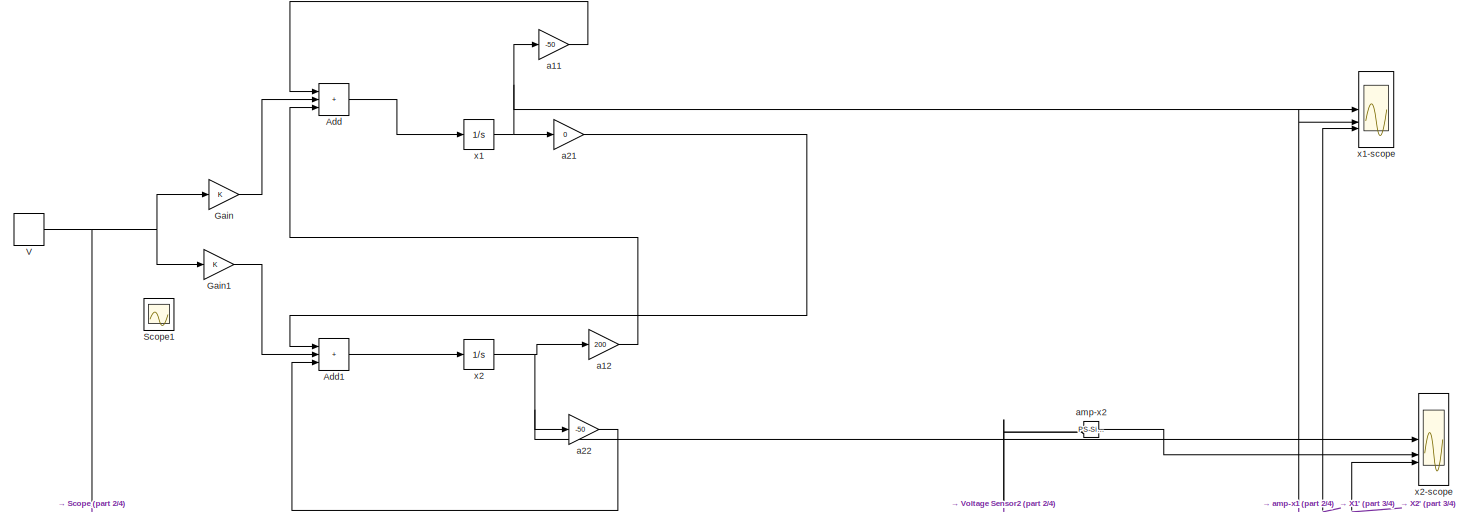
[diagram: root canvas - part 1/4, full width, top band]
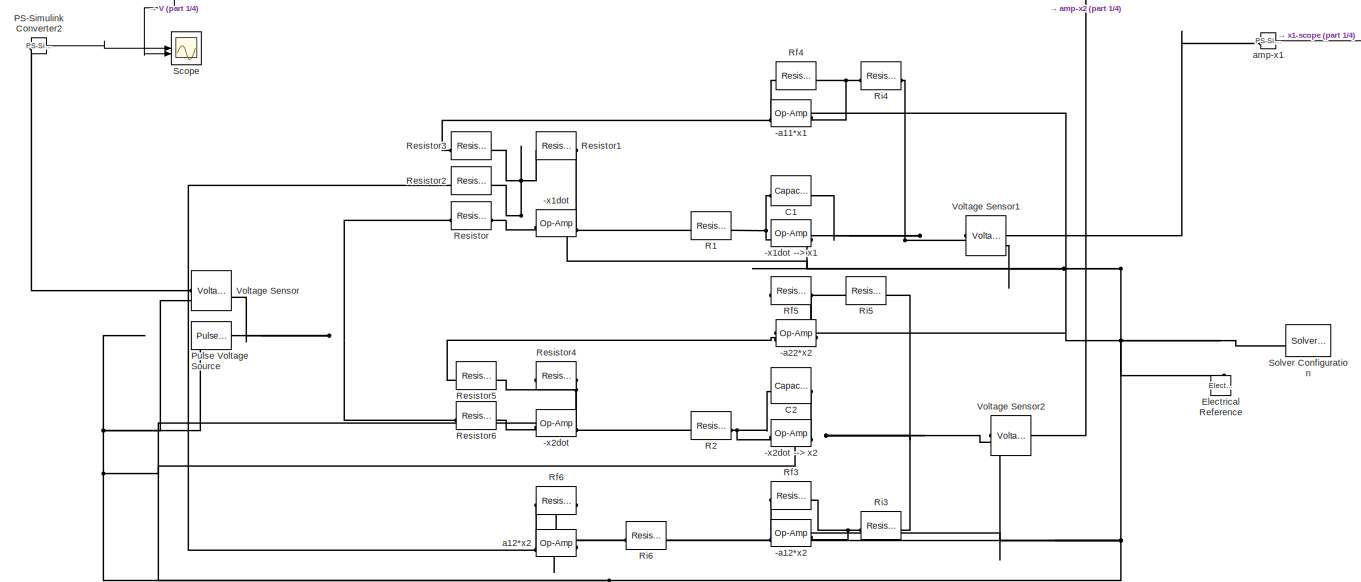
[diagram: root canvas - part 2/4, full width, top band]
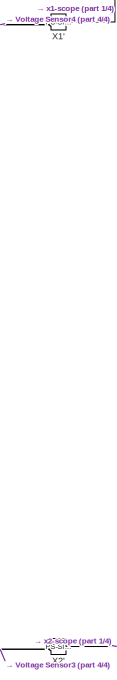
[diagram: root canvas - part 3/4, middle right region]
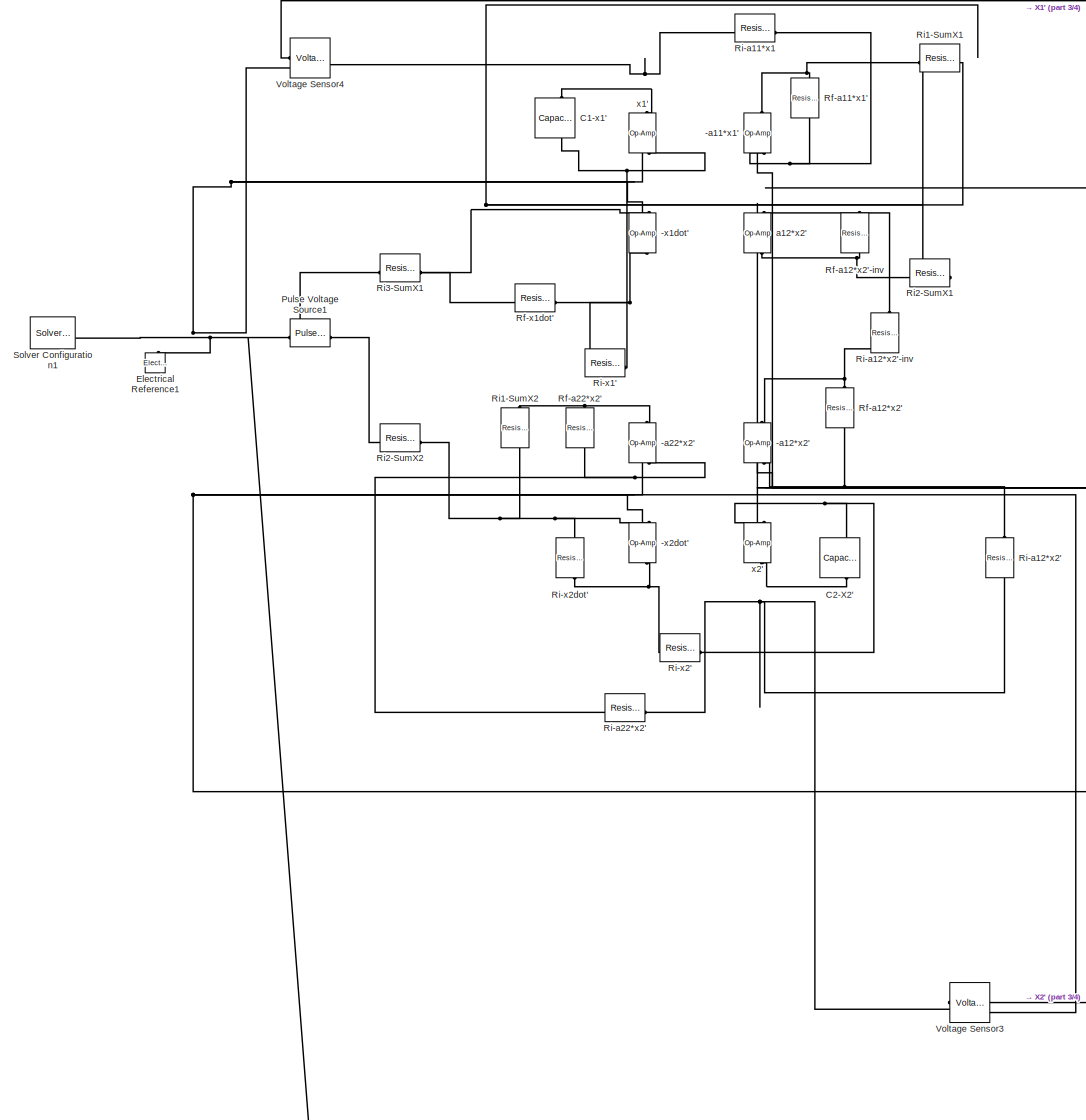
[diagram: root canvas - part 4/4, central region]
MODEL slx_df04e0e66775
KIND model
CONFIG AbsTol = 1e-3
CONFIG EnableMultiTasking = off
CONFIG FixedStep = auto
CONFIG MaxStep = auto
CONFIG MinStep = auto
CONFIG RelTol = 1e-3
CONFIG SampleTimeConstraint = Unconstrained
CONFIG SolverName = VariableStepAuto
CONFIG StartTime = 0.0
CONFIG StopTime = 0.4
BLOCK [Reference] -a11*x1  REF=fl_lib/Electrical/Electrical Elements/Op-Amp
  SourceBlock = fl_lib/Electrical/Electrical Elements/Op-Amp
  SourceType = Op-Amp
BLOCK [Reference] -a11*x1'  REF=fl_lib/Electrical/Electrical Elements/Op-Amp
  NameLocation = right
  SourceBlock = fl_lib/Electrical/Electrical Elements/Op-Amp
  SourceType = Op-Amp
BLOCK [Reference] -a12*x2  REF=fl_lib/Electrical/Electrical Elements/Op-Amp
  SourceBlock = fl_lib/Electrical/Electrical Elements/Op-Amp
  SourceType = Op-Amp
BLOCK [Reference] -a12*x2'  REF=fl_lib/Electrical/Electrical Elements/Op-Amp
  NameLocation = right
  SourceBlock = fl_lib/Electrical/Electrical Elements/Op-Amp
  SourceType = Op-Amp
BLOCK [Reference] -a22*x2  REF=fl_lib/Electrical/Electrical Elements/Op-Amp
  SourceBlock = fl_lib/Electrical/Electrical Elements/Op-Amp
  SourceType = Op-Amp
BLOCK [Reference] -a22*x2'  REF=fl_lib/Electrical/Electrical Elements/Op-Amp
  NameLocation = right
  SourceBlock = fl_lib/Electrical/Electrical Elements/Op-Amp
  SourceType = Op-Amp
BLOCK [Reference] -x1dot  REF=fl_lib/Electrical/Electrical Elements/Op-Amp
  SourceBlock = fl_lib/Electrical/Electrical Elements/Op-Amp
  SourceType = Op-Amp
BLOCK [Reference] -x1dot --> x1  REF=fl_lib/Electrical/Electrical Elements/Op-Amp
  SourceBlock = fl_lib/Electrical/Electrical Elements/Op-Amp
  SourceType = Op-Amp
BLOCK [Reference] -x1dot'  REF=fl_lib/Electrical/Electrical Elements/Op-Amp
  NameLocation = left
  SourceBlock = fl_lib/Electrical/Electrical Elements/Op-Amp
  SourceType = Op-Amp
BLOCK [Reference] -x2dot  REF=fl_lib/Electrical/Electrical Elements/Op-Amp
  SourceBlock = fl_lib/Electrical/Electrical Elements/Op-Amp
  SourceType = Op-Amp
BLOCK [Reference] -x2dot --> x2  REF=fl_lib/Electrical/Electrical Elements/Op-Amp
  SourceBlock = fl_lib/Electrical/Electrical Elements/Op-Amp
  SourceType = Op-Amp
BLOCK [Reference] -x2dot'  REF=fl_lib/Electrical/Electrical Elements/Op-Amp
  NameLocation = left
  SourceBlock = fl_lib/Electrical/Electrical Elements/Op-Amp
  SourceType = Op-Amp
BLOCK [Sum] Add
  IconShape = rectangular
  Inputs = +++
BLOCK [Sum] Add1
  IconShape = rectangular
  Inputs = +++
BLOCK [Reference] C1  REF=fl_lib/Electrical/Electrical Elements/Capacitor
  SourceBlock = fl_lib/Electrical/Electrical Elements/Capacitor
  SourceType = Capacitor
BLOCK [Reference] C1-x1'  REF=fl_lib/Electrical/Electrical Elements/Capacitor
  NameLocation = right
  SourceBlock = fl_lib/Electrical/Electrical Elements/Capacitor
  SourceType = Capacitor
BLOCK [Reference] C2  REF=fl_lib/Electrical/Electrical Elements/Capacitor
  SourceBlock = fl_lib/Electrical/Electrical Elements/Capacitor
  SourceType = Capacitor
BLOCK [Reference] C2-X2'  REF=fl_lib/Electrical/Electrical Elements/Capacitor
  NameLocation = left
  SourceBlock = fl_lib/Electrical/Electrical Elements/Capacitor
  SourceType = Capacitor
BLOCK [Reference] Electrical Reference  REF=fl_lib/Electrical/Electrical Elements/Electrical Reference
  LibrarySourceBlock = ee_lib/Connectors &\nReferences/Electrical Reference
  NameLocation = right
  SourceBlock = fl_lib/Electrical/Electrical Elements/Electrical Reference
  SourceType = Electrical Reference
BLOCK [Reference] Electrical Reference1  REF=fl_lib/Electrical/Electrical Elements/Electrical Reference
  LibrarySourceBlock = ee_lib/Connectors &\nReferences/Electrical Reference
  NameLocation = right
  SourceBlock = fl_lib/Electrical/Electrical Elements/Electrical Reference
  SourceType = Electrical Reference
BLOCK [Gain] Gain
BLOCK [Gain] Gain1
BLOCK [Reference] PS-Simulink Converter2  REF=nesl_utility/PS-Simulink
Converter
  SourceBlock = nesl_utility/PS-Simulink\nConverter
  SourceType = PS-Simulink\nConverter
BLOCK [Reference] Pulse Voltage Source  REF=ee_lib/Additional
Components/SPICE Sources/Pulse Voltage Source
  LibrarySourceBlock = ee_lib/Sources/Pulse Voltage Source
  SourceBlock = ee_lib/Additional\nComponents/SPICE Sources/Pulse Voltage Source
  SourceType = Pulse Voltage Source
BLOCK [Reference] Pulse Voltage Source1  REF=ee_lib/Additional
Components/SPICE Sources/Pulse Voltage Source
  LibrarySourceBlock = ee_lib/Sources/Pulse Voltage Source
  SourceBlock = ee_lib/Additional\nComponents/SPICE Sources/Pulse Voltage Source
  SourceType = Pulse Voltage Source
BLOCK [Reference] R1  REF=fl_lib/Electrical/Electrical Elements/Resistor
  SourceBlock = fl_lib/Electrical/Electrical Elements/Resistor
  SourceType = Resistor
BLOCK [Reference] R2  REF=fl_lib/Electrical/Electrical Elements/Resistor
  SourceBlock = fl_lib/Electrical/Electrical Elements/Resistor
  SourceType = Resistor
BLOCK [Reference] Resistor  REF=fl_lib/Electrical/Electrical Elements/Resistor
  SourceBlock = fl_lib/Electrical/Electrical Elements/Resistor
  SourceType = Resistor
BLOCK [Reference] Resistor1  REF=fl_lib/Electrical/Electrical Elements/Resistor
  SourceBlock = fl_lib/Electrical/Electrical Elements/Resistor
  SourceType = Resistor
BLOCK [Reference] Resistor2  REF=fl_lib/Electrical/Electrical Elements/Resistor
  SourceBlock = fl_lib/Electrical/Electrical Elements/Resistor
  SourceType = Resistor
BLOCK [Reference] Resistor3  REF=fl_lib/Electrical/Electrical Elements/Resistor
  SourceBlock = fl_lib/Electrical/Electrical Elements/Resistor
  SourceType = Resistor
BLOCK [Reference] Resistor4  REF=fl_lib/Electrical/Electrical Elements/Resistor
  SourceBlock = fl_lib/Electrical/Electrical Elements/Resistor
  SourceType = Resistor
BLOCK [Reference] Resistor5  REF=fl_lib/Electrical/Electrical Elements/Resistor
  SourceBlock = fl_lib/Electrical/Electrical Elements/Resistor
  SourceType = Resistor
BLOCK [Reference] Resistor6  REF=fl_lib/Electrical/Electrical Elements/Resistor
  SourceBlock = fl_lib/Electrical/Electrical Elements/Resistor
  SourceType = Resistor
BLOCK [Reference] Rf-a11*x1'  REF=fl_lib/Electrical/Electrical Elements/Resistor
  NameLocation = right
  SourceBlock = fl_lib/Electrical/Electrical Elements/Resistor
  SourceType = Resistor
BLOCK [Reference] Rf-a12*x2'  REF=fl_lib/Electrical/Electrical Elements/Resistor
  NameLocation = right
  SourceBlock = fl_lib/Electrical/Electrical Elements/Resistor
  SourceType = Resistor
BLOCK [Reference] Rf-a12*x2'-inv  REF=fl_lib/Electrical/Electrical Elements/Resistor
  NameLocation = left
  SourceBlock = fl_lib/Electrical/Electrical Elements/Resistor
  SourceType = Resistor
BLOCK [Reference] Rf-a22*x2'  REF=fl_lib/Electrical/Electrical Elements/Resistor
  NameLocation = right
  SourceBlock = fl_lib/Electrical/Electrical Elements/Resistor
  SourceType = Resistor
BLOCK [Reference] Rf-x1dot'  REF=fl_lib/Electrical/Electrical Elements/Resistor
  SourceBlock = fl_lib/Electrical/Electrical Elements/Resistor
  SourceType = Resistor
BLOCK [Reference] Rf3  REF=fl_lib/Electrical/Electrical Elements/Resistor
  SourceBlock = fl_lib/Electrical/Electrical Elements/Resistor
  SourceType = Resistor
BLOCK [Reference] Rf4  REF=fl_lib/Electrical/Electrical Elements/Resistor
  SourceBlock = fl_lib/Electrical/Electrical Elements/Resistor
  SourceType = Resistor
BLOCK [Reference] Rf5  REF=fl_lib/Electrical/Electrical Elements/Resistor
  SourceBlock = fl_lib/Electrical/Electrical Elements/Resistor
  SourceType = Resistor
BLOCK [Reference] Rf6  REF=fl_lib/Electrical/Electrical Elements/Resistor
  SourceBlock = fl_lib/Electrical/Electrical Elements/Resistor
  SourceType = Resistor
BLOCK [Reference] Ri-a11*x1  REF=fl_lib/Electrical/Electrical Elements/Resistor
  SourceBlock = fl_lib/Electrical/Electrical Elements/Resistor
  SourceType = Resistor
BLOCK [Reference] Ri-a12*x2'  REF=fl_lib/Electrical/Electrical Elements/Resistor
  NameLocation = right
  SourceBlock = fl_lib/Electrical/Electrical Elements/Resistor
  SourceType = Resistor
BLOCK [Reference] Ri-a12*x2'-inv  REF=fl_lib/Electrical/Electrical Elements/Resistor
  NameLocation = right
  SourceBlock = fl_lib/Electrical/Electrical Elements/Resistor
  SourceType = Resistor
BLOCK [Reference] Ri-a22*x2'  REF=fl_lib/Electrical/Electrical Elements/Resistor
  NameLocation = top
  SourceBlock = fl_lib/Electrical/Electrical Elements/Resistor
  SourceType = Resistor
BLOCK [Reference] Ri-x1'  REF=fl_lib/Electrical/Electrical Elements/Resistor
  NameLocation = top
  SourceBlock = fl_lib/Electrical/Electrical Elements/Resistor
  SourceType = Resistor
BLOCK [Reference] Ri-x2'  REF=fl_lib/Electrical/Electrical Elements/Resistor
  SourceBlock = fl_lib/Electrical/Electrical Elements/Resistor
  SourceType = Resistor
BLOCK [Reference] Ri-x2dot'  REF=fl_lib/Electrical/Electrical Elements/Resistor
  NameLocation = left
  SourceBlock = fl_lib/Electrical/Electrical Elements/Resistor
  SourceType = Resistor
BLOCK [Reference] Ri1-SumX1  REF=fl_lib/Electrical/Electrical Elements/Resistor
  SourceBlock = fl_lib/Electrical/Electrical Elements/Resistor
  SourceType = Resistor
BLOCK [Reference] Ri1-SumX2  REF=fl_lib/Electrical/Electrical Elements/Resistor
  NameLocation = left
  SourceBlock = fl_lib/Electrical/Electrical Elements/Resistor
  SourceType = Resistor
BLOCK [Reference] Ri2-SumX1  REF=fl_lib/Electrical/Electrical Elements/Resistor
  NameLocation = top
  SourceBlock = fl_lib/Electrical/Electrical Elements/Resistor
  SourceType = Resistor
BLOCK [Reference] Ri2-SumX2  REF=fl_lib/Electrical/Electrical Elements/Resistor
  SourceBlock = fl_lib/Electrical/Electrical Elements/Resistor
  SourceType = Resistor
BLOCK [Reference] Ri3  REF=fl_lib/Electrical/Electrical Elements/Resistor
  SourceBlock = fl_lib/Electrical/Electrical Elements/Resistor
  SourceType = Resistor
BLOCK [Reference] Ri3-SumX1  REF=fl_lib/Electrical/Electrical Elements/Resistor
  SourceBlock = fl_lib/Electrical/Electrical Elements/Resistor
  SourceType = Resistor
BLOCK [Reference] Ri4  REF=fl_lib/Electrical/Electrical Elements/Resistor
  SourceBlock = fl_lib/Electrical/Electrical Elements/Resistor
  SourceType = Resistor
BLOCK [Reference] Ri5  REF=fl_lib/Electrical/Electrical Elements/Resistor
  SourceBlock = fl_lib/Electrical/Electrical Elements/Resistor
  SourceType = Resistor
BLOCK [Reference] Ri6  REF=fl_lib/Electrical/Electrical Elements/Resistor
  SourceBlock = fl_lib/Electrical/Electrical Elements/Resistor
  SourceType = Resistor
BLOCK [Scope] Scope
  Floating = off
  NumInputPorts = 2
  ScopeSpecificationString = Simulink.scopes.TimeScopeBlockCfg('CurrentConfiguration', extmgr.ConfigurationSet(extmgr.Configuration('Core','General UI',true),extmgr.Configuration('Core','Source UI',true),extmgr.Configuration('Sources','WiredSimulink',true,'DataLoggingVariableName','ScopeData1'),extmgr.Configuration('Visuals','Time Domain',true,'SerializedDisplays',{struct('MinYLimReal','-0.125','MaxYLimReal','1.125','YLabelRe...<+1730ch>
BLOCK [Scope] Scope1
  Floating = off
  IOType = viewer
  NumInputPorts = 1
  ScopeSpecificationString = Simulink.scopes.TimeScopeBlockCfg('CurrentConfiguration', extmgr.ConfigurationSet(extmgr.Configuration('Core','General UI',true),extmgr.Configuration('Core','Source UI',true),extmgr.Configuration('Sources','WiredSimulink',true,'DataLoggingVariableName','ScopeData1'),extmgr.Configuration('Visuals','Time Domain',true,'SerializedDisplays',{struct('MinYLimReal','-1.25','MaxYLimReal','11.25','YLabelRea...<+1374ch>
BLOCK [Reference] Solver Configuration  REF=nesl_utility/Solver
Configuration
  SourceBlock = nesl_utility/Solver\nConfiguration
  SourceType = Solver\nConfiguration
BLOCK [Reference] Solver Configuration1  REF=nesl_utility/Solver
Configuration
  SourceBlock = nesl_utility/Solver\nConfiguration
  SourceType = Solver\nConfiguration
BLOCK [DiscretePulseGenerator] V
  Period = 0.25
  PulseType = Time based
  PulseWidth = 50
BLOCK [Reference] Voltage Sensor  REF=fl_lib/Electrical/Electrical Sensors/Voltage Sensor
  SourceBlock = fl_lib/Electrical/Electrical Sensors/Voltage Sensor
  SourceType = Voltage Sensor
BLOCK [Reference] Voltage Sensor1  REF=fl_lib/Electrical/Electrical Sensors/Voltage Sensor
  SourceBlock = fl_lib/Electrical/Electrical Sensors/Voltage Sensor
  SourceType = Voltage Sensor
BLOCK [Reference] Voltage Sensor2  REF=fl_lib/Electrical/Electrical Sensors/Voltage Sensor
  NameLocation = top
  SourceBlock = fl_lib/Electrical/Electrical Sensors/Voltage Sensor
  SourceType = Voltage Sensor
BLOCK [Reference] Voltage Sensor3  REF=fl_lib/Electrical/Electrical Sensors/Voltage Sensor
  NameLocation = top
  SourceBlock = fl_lib/Electrical/Electrical Sensors/Voltage Sensor
  SourceType = Voltage Sensor
BLOCK [Reference] Voltage Sensor4  REF=fl_lib/Electrical/Electrical Sensors/Voltage Sensor
  SourceBlock = fl_lib/Electrical/Electrical Sensors/Voltage Sensor
  SourceType = Voltage Sensor
BLOCK [Reference] X1'  REF=nesl_utility/PS-Simulink
Converter
  SourceBlock = nesl_utility/PS-Simulink\nConverter
  SourceType = PS-Simulink\nConverter
BLOCK [Reference] X2'  REF=nesl_utility/PS-Simulink
Converter
  SourceBlock = nesl_utility/PS-Simulink\nConverter
  SourceType = PS-Simulink\nConverter
BLOCK [Gain] a11
  Gain = -50
BLOCK [Gain] a12
  Gain = 200
BLOCK [Reference] a12*x2  REF=fl_lib/Electrical/Electrical Elements/Op-Amp
  SourceBlock = fl_lib/Electrical/Electrical Elements/Op-Amp
  SourceType = Op-Amp
BLOCK [Reference] a12*x2'  REF=fl_lib/Electrical/Electrical Elements/Op-Amp
  NameLocation = left
  SourceBlock = fl_lib/Electrical/Electrical Elements/Op-Amp
  SourceType = Op-Amp
BLOCK [Gain] a21
  Gain = 0
BLOCK [Gain] a22
  Gain = -50
BLOCK [Reference] amp-x1  REF=nesl_utility/PS-Simulink
Converter
  SourceBlock = nesl_utility/PS-Simulink\nConverter
  SourceType = PS-Simulink\nConverter
BLOCK [Reference] amp-x2  REF=nesl_utility/PS-Simulink
Converter
  SourceBlock = nesl_utility/PS-Simulink\nConverter
  SourceType = PS-Simulink\nConverter
BLOCK [Integrator] x1
BLOCK [Reference] x1'  REF=fl_lib/Electrical/Electrical Elements/Op-Amp
  NameLocation = right
  SourceBlock = fl_lib/Electrical/Electrical Elements/Op-Amp
  SourceType = Op-Amp
BLOCK [Scope] x1-scope
  Floating = off
  NumInputPorts = 3
  ScopeSpecificationString = Simulink.scopes.TimeScopeBlockCfg('CurrentConfiguration', extmgr.ConfigurationSet(extmgr.Configuration('Core','General UI',true),extmgr.Configuration('Core','Source UI',true),extmgr.Configuration('Sources','WiredSimulink',true),extmgr.Configuration('Visuals','Time Domain',true,'SerializedDisplays',{struct('MinYLimReal','-0.01236','MaxYLimReal','0.11128','YLabelReal','','MinYLimMag','0.00000','MaxY...<+2742ch>
BLOCK [Integrator] x2
BLOCK [Reference] x2'  REF=fl_lib/Electrical/Electrical Elements/Op-Amp
  NameLocation = left
  SourceBlock = fl_lib/Electrical/Electrical Elements/Op-Amp
  SourceType = Op-Amp
BLOCK [Scope] x2-scope
  Floating = off
  NumInputPorts = 3
  ScopeSpecificationString = Simulink.scopes.TimeScopeBlockCfg('CurrentConfiguration', extmgr.ConfigurationSet(extmgr.Configuration('Core','General UI',true),extmgr.Configuration('Core','Source UI',true),extmgr.Configuration('Sources','WiredSimulink',true,'DataLoggingVariableName','ScopeData2'),extmgr.Configuration('Visuals','Time Domain',true,'SerializedDisplays',{struct('MinYLimReal','-0.0025','MaxYLimReal','0.02246','YLabe...<+2922ch>
LINE Add1:1 -> x2:1
LINE Add:1 -> x1:1
LINE Gain1:1 -> Add1:2
LINE Gain:1 -> Add:2
LINE PS-Simulink Converter2:1 -> Scope:1
NET V:1 -> Gain1:1, Gain:1, Scope:2
LINE X1':1 -> x1-scope:3
LINE X2':1 -> x2-scope:3
LINE a11:1 -> Add:1
LINE a12:1 -> Add:3
LINE a21:1 -> Add1:1
LINE a22:1 -> Add1:3
LINE amp-x1:1 -> x1-scope:2
LINE amp-x2:1 -> x2-scope:2
NET x1:1 -> a11:1, a21:1, x1-scope:1
NET x2:1 -> a12:1, a22:1, x2-scope:1
PNET net1: -a11*x1':LConn1 -- -a12*x2':LConn1 -- -a22*x2':LConn1 -- -x1dot':LConn1 -- -x2dot':LConn1 -- Electrical Reference1:LConn1 -- Pulse Voltage Source1:RConn1 -- Solver Configuration1:RConn1 -- Voltage Sensor3:RConn2 -- Voltage Sensor4:RConn2 -- a12*x2':LConn1 -- x1':LConn1 -- x2':LConn1
PNET net2: -a11*x1':LConn2 -- Rf-a11*x1':LConn1 -- Ri-a11*x1:RConn1
PNET net3: -a11*x1':RConn1 -- Rf-a11*x1':RConn1 -- Ri1-SumX1:LConn1
PNET net4: -a11*x1:LConn1 -- -a12*x2:LConn1 -- -a22*x2:LConn1 -- -x1dot --> x1:LConn1 -- -x1dot:LConn1 -- -x2dot --> x2:LConn1 -- -x2dot:LConn1 -- Electrical Reference:LConn1 -- Pulse Voltage Source:RConn1 -- Solver Configuration:RConn1 -- Voltage Sensor1:RConn2 -- Voltage Sensor2:RConn2 -- Voltage Sensor:RConn2 -- a12*x2:LConn1
PNET net5: -a11*x1:LConn2 -- Rf4:LConn1 -- Ri4:RConn1
PNET net6: -a11*x1:RConn1 -- Resistor3:LConn1 -- Rf4:RConn1
PNET net7: -a12*x2':LConn2 -- Rf-a12*x2':LConn1 -- Ri-a12*x2':RConn1
PNET net8: -a12*x2':RConn1 -- Rf-a12*x2':RConn1 -- Ri-a12*x2'-inv:LConn1
PNET net9: -a12*x2:LConn2 -- Rf3:LConn1 -- Ri3:RConn1
PNET net10: -a12*x2:RConn1 -- Rf3:RConn1 -- Ri6:LConn1
PNET net11: -a22*x2':LConn2 -- Rf-a22*x2':LConn1 -- Ri-a22*x2':RConn1
PNET net12: -a22*x2':RConn1 -- Rf-a22*x2':RConn1 -- Ri1-SumX2:LConn1
PNET net13: -a22*x2:LConn2 -- Rf5:RConn1 -- Ri5:LConn1
PNET net14: -a22*x2:RConn1 -- Resistor5:LConn1 -- Rf5:LConn1
PNET net15: -x1dot --> x1:LConn2 -- C1:LConn1 -- R1:RConn1
PNET net16: -x1dot --> x1:RConn1 -- C1:RConn1 -- Ri4:LConn1 -- Voltage Sensor1:LConn1
PNET net17: -x1dot':LConn2 -- Rf-x1dot':LConn1 -- Ri1-SumX1:RConn1 -- Ri2-SumX1:RConn1 -- Ri3-SumX1:RConn1
PNET net18: -x1dot':RConn1 -- Rf-x1dot':RConn1 -- Ri-x1':LConn1
PNET net19: -x1dot:LConn2 -- Resistor1:LConn1 -- Resistor2:RConn1 -- Resistor3:RConn1 -- Resistor:RConn1
PNET net20: -x1dot:RConn1 -- R1:LConn1 -- Resistor1:RConn1
PNET net21: -x2dot --> x2:LConn2 -- C2:LConn1 -- R2:RConn1
PNET net22: -x2dot --> x2:RConn1 -- C2:RConn1 -- Ri3:LConn1 -- Ri5:RConn1 -- Voltage Sensor2:LConn1
PNET net23: -x2dot':LConn2 -- Ri-x2dot':LConn1 -- Ri1-SumX2:RConn1 -- Ri2-SumX2:RConn1
PNET net24: -x2dot':RConn1 -- Ri-x2':LConn1 -- Ri-x2dot':RConn1
PNET net25: -x2dot:LConn2 -- Resistor4:LConn1 -- Resistor5:RConn1 -- Resistor6:RConn1
PNET net26: -x2dot:RConn1 -- R2:LConn1 -- Resistor4:RConn1
PNET net27: C1-x1':LConn1 -- Ri-x1':RConn1 -- x1':LConn2
PNET net28: C1-x1':RConn1 -- Ri-a11*x1:LConn1 -- Voltage Sensor4:LConn1 -- x1':RConn1
PNET net29: C2-X2':LConn1 -- Ri-x2':RConn1 -- x2':LConn2
PNET net30: C2-X2':RConn1 -- Ri-a12*x2':LConn1 -- Ri-a22*x2':LConn1 -- Voltage Sensor3:LConn1 -- x2':RConn1
PLINE PS-Simulink Converter2:LConn1 -- Voltage Sensor:RConn1
PNET net31: Pulse Voltage Source1:LConn1 -- Ri2-SumX2:LConn1 -- Ri3-SumX1:LConn1
PNET net32: Pulse Voltage Source:LConn1 -- Resistor6:LConn1 -- Resistor:LConn1 -- Voltage Sensor:LConn1
PNET net33: Resistor2:LConn1 -- Rf6:RConn1 -- a12*x2:RConn1
PNET net34: Rf-a12*x2'-inv:LConn1 -- Ri-a12*x2'-inv:RConn1 -- a12*x2':LConn2
PNET net35: Rf-a12*x2'-inv:RConn1 -- Ri2-SumX1:LConn1 -- a12*x2':RConn1
PNET net36: Rf6:LConn1 -- Ri6:RConn1 -- a12*x2:LConn2
PLINE Voltage Sensor1:RConn1 -- amp-x1:LConn1
PLINE Voltage Sensor2:RConn1 -- amp-x2:LConn1
PLINE Voltage Sensor3:RConn1 -- X2':LConn1
PLINE Voltage Sensor4:RConn1 -- X1':LConn1
note: NET lines group one-source signal fan-out (src -> all destinations, sorted); 1:1 wires keep LINE; PNET lines group multi-terminal physical nets as a canonical sorted terminal list (undirected conserving connections); 2-terminal nets keep the pairwise PLINE form
